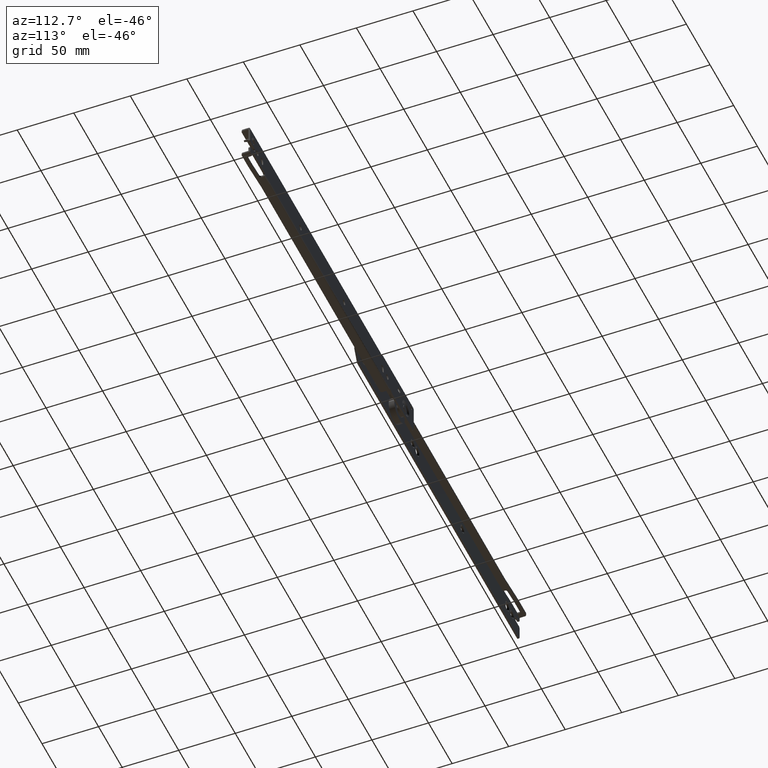
[diagram: clean part render]
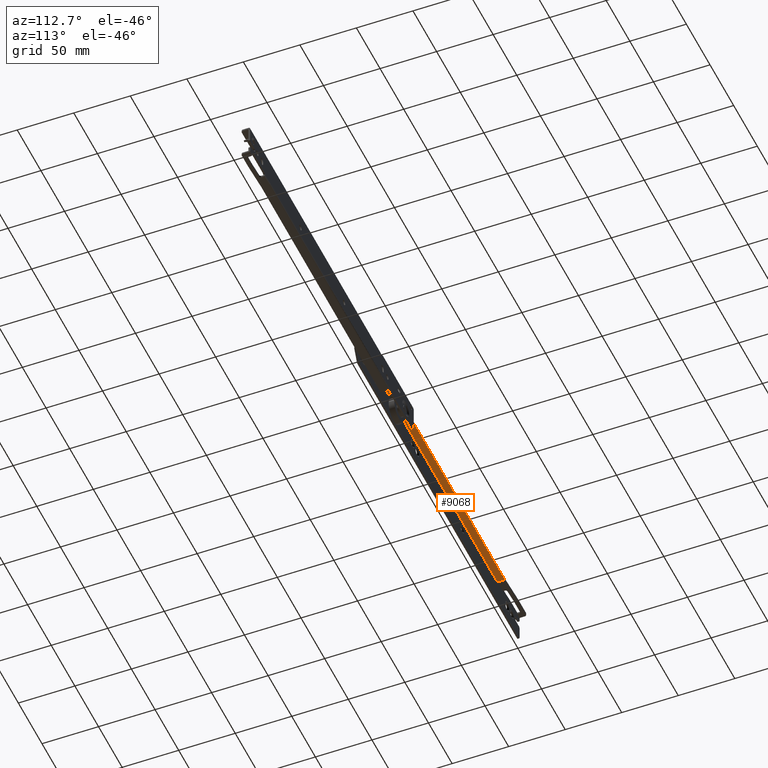
[diagram: same view with one face highlighted and labeled with its STEP entity id]
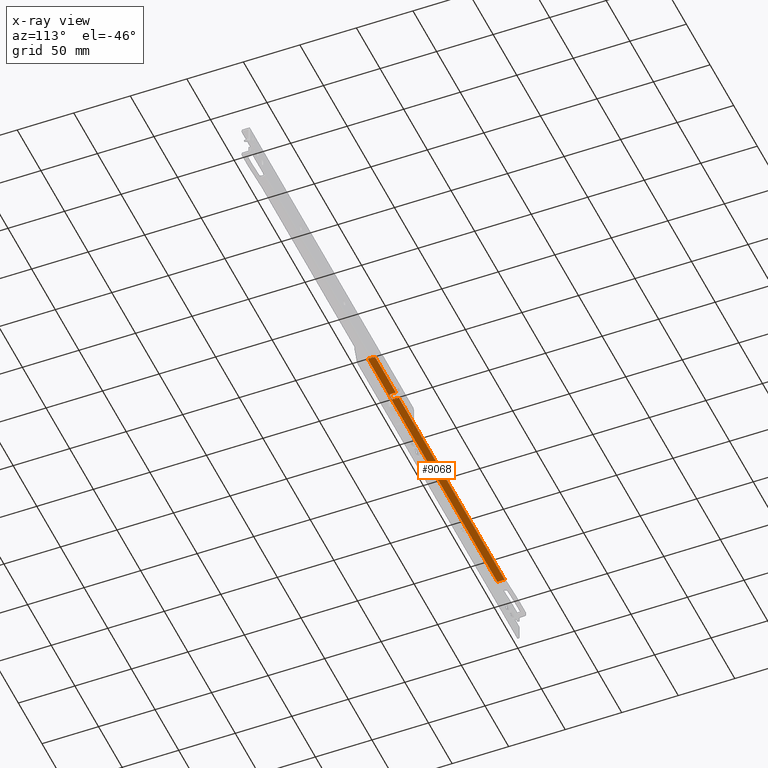
[diagram: x-ray of the same camera — body ghosted, the highlighted face saturated]
A machine part, auxiliary view. The second image highlights one B-rep face of the part: STEP entity #9068.
The next image is the same camera in x-ray: the body ghosted, the highlighted face saturated — about 0% of this face is hidden behind the body in this view.
In plain terms, the highlighted face is a freeform B-spline surface patch.
Its self-contained STEP definition (entity closure, byte-faithful):
#7277=CARTESIAN_POINT('',(321.0,6.0,22.500000000000000));
#7278=VERTEX_POINT('',#7277);
#7284=CARTESIAN_POINT('',(319.0,8.0,22.500000000000000));
#7285=VERTEX_POINT('',#7284);
#7286=CARTESIAN_POINT('',(319.0,8.0,22.500000000000000));
#7287=CARTESIAN_POINT('',(321.000000000000060,8.0,22.500000000000000));
#7288=CARTESIAN_POINT('',(321.0,6.0,22.500000000000000));
#7296=(BOUNDED_CURVE()B_SPLINE_CURVE(2,(#7286,#7287,#7288),.UNSPECIFIED.,.F.,.U.)CURVE()GEOMETRIC_REPRESENTATION_ITEM()QUASI_UNIFORM_CURVE()RATIONAL_B_SPLINE_CURVE((1.0,0.707106781186548,1.0))REPRESENTATION_ITEM(''));
#7297=EDGE_CURVE('',#7285,#7278,#7296,.T.);
#7434=CARTESIAN_POINT('',(277.020106000000000,2.0,22.500000000000000));
#7435=VERTEX_POINT('',#7434);
#7443=CARTESIAN_POINT('',(274.469830000000000,2.0,22.500000000000000));
#7444=VERTEX_POINT('',#7443);
#7445=CARTESIAN_POINT('',(277.020106000000000,2.0,22.500000000000000));
#7446=CARTESIAN_POINT('',(274.469830000000000,2.0,22.500000000000000));
#7447=QUASI_UNIFORM_CURVE('',1,(#7445,#7446),.UNSPECIFIED.,.F.,.U.);
#7448=EDGE_CURVE('',#7435,#7444,#7447,.T.);
#7456=CARTESIAN_POINT('',(273.094830000000000,2.000000000000030,22.500000000000000));
#7457=VERTEX_POINT('',#7456);
#7463=CARTESIAN_POINT('',(270.544554000000010,2.0,22.500000000000000));
#7464=VERTEX_POINT('',#7463);
#7465=CARTESIAN_POINT('',(273.094830000000000,2.000000000000030,22.500000000000000));
#7466=CARTESIAN_POINT('',(270.544554000000010,2.0,22.500000000000000));
#7467=QUASI_UNIFORM_CURVE('',1,(#7465,#7466),.UNSPECIFIED.,.F.,.U.);
#7468=EDGE_CURVE('',#7457,#7464,#7467,.T.);
#7499=CARTESIAN_POINT('',(270.544554000000010,8.0,22.500000000000000));
#7500=VERTEX_POINT('',#7499);
#7501=CARTESIAN_POINT('',(270.544554000000010,8.0,22.500000000000000));
#7502=CARTESIAN_POINT('',(270.544554000000010,2.0,22.500000000000000));
#7503=QUASI_UNIFORM_CURVE('',1,(#7501,#7502),.UNSPECIFIED.,.F.,.U.);
#7504=EDGE_CURVE('',#7500,#7464,#7503,.T.);
#7567=CARTESIAN_POINT('',(277.020106000000000,8.0,22.500000000000000));
#7568=VERTEX_POINT('',#7567);
#7574=CARTESIAN_POINT('',(277.020106000000000,8.0,22.500000000000000));
#7575=CARTESIAN_POINT('',(277.020106000000000,2.0,22.500000000000000));
#7576=QUASI_UNIFORM_CURVE('',1,(#7574,#7575),.UNSPECIFIED.,.F.,.U.);
#7577=EDGE_CURVE('',#7568,#7435,#7576,.T.);
#7851=CARTESIAN_POINT('',(321.0,1.500000000000000,22.500000000000000));
#7852=VERTEX_POINT('',#7851);
#8511=CARTESIAN_POINT('',(47.0,8.0,22.500000000000000));
#8512=VERTEX_POINT('',#8511);
#8518=CARTESIAN_POINT('',(47.0,1.500000000000000,22.500000000000000));
#8519=VERTEX_POINT('',#8518);
#8520=CARTESIAN_POINT('',(47.0,8.0,22.500000000000000));
#8521=CARTESIAN_POINT('',(47.0,1.500000000000000,22.500000000000000));
#8522=QUASI_UNIFORM_CURVE('',1,(#8520,#8521),.UNSPECIFIED.,.F.,.U.);
#8523=EDGE_CURVE('',#8512,#8519,#8522,.T.);
#8949=CARTESIAN_POINT('',(321.0,6.0,22.500000000000000));
#8950=CARTESIAN_POINT('',(321.0,1.500000000000000,22.500000000000000));
#8951=QUASI_UNIFORM_CURVE('',1,(#8949,#8950),.UNSPECIFIED.,.F.,.U.);
#8952=EDGE_CURVE('',#7278,#7852,#8951,.T.);
#8990=CARTESIAN_POINT('',(319.0,8.0,22.500000000000000));
#8991=CARTESIAN_POINT('',(277.020106000000000,8.0,22.500000000000000));
#8992=QUASI_UNIFORM_CURVE('',1,(#8990,#8991),.UNSPECIFIED.,.F.,.U.);
#8993=EDGE_CURVE('',#7285,#7568,#8992,.T.);
#8998=CARTESIAN_POINT('',(270.544554000000010,8.0,22.500000000000000));
#8999=CARTESIAN_POINT('',(47.0,8.0,22.500000000000000));
#9000=QUASI_UNIFORM_CURVE('',1,(#8998,#8999),.UNSPECIFIED.,.F.,.U.);
#9001=EDGE_CURVE('',#7500,#8512,#9000,.T.);
#9033=CARTESIAN_POINT('',(274.469830000000000,2.0,22.500000000000000));
#9034=CARTESIAN_POINT('',(273.094830000000000,2.000000000000030,22.500000000000000));
#9035=QUASI_UNIFORM_CURVE('',1,(#9033,#9034),.UNSPECIFIED.,.F.,.U.);
#9036=EDGE_CURVE('',#7444,#7457,#9035,.T.);
#9046=CARTESIAN_POINT('',(334.686299468934920,1.175325012598261,22.500000000000000));
#9047=CARTESIAN_POINT('',(33.313693181812468,1.175325012598261,22.500000000000000));
#9048=CARTESIAN_POINT('',(334.686299468934920,8.324675161745324,22.500000000000000));
#9049=CARTESIAN_POINT('',(33.313693181812468,8.324675161745324,22.500000000000000));
#9050=B_SPLINE_SURFACE_WITH_KNOTS('',1,1,((#9046,#9048),(#9047,#9049)),.UNSPECIFIED.,.F.,.F.,.U.,(2,2),(2,2),(0.0,301.372606287122380),(0.0,7.149350149147063),.UNSPECIFIED.);
#9051=ORIENTED_EDGE('',*,*,#8993,.F.);
#9052=ORIENTED_EDGE('',*,*,#7297,.T.);
#9053=ORIENTED_EDGE('',*,*,#8952,.T.);
#9054=CARTESIAN_POINT('',(321.0,1.500000000000000,22.500000000000000));
#9055=CARTESIAN_POINT('',(47.0,1.500000000000000,22.500000000000000));
#9056=QUASI_UNIFORM_CURVE('',1,(#9054,#9055),.UNSPECIFIED.,.F.,.U.);
#9057=EDGE_CURVE('',#7852,#8519,#9056,.T.);
#9058=ORIENTED_EDGE('',*,*,#9057,.T.);
#9059=ORIENTED_EDGE('',*,*,#8523,.F.);
#9060=ORIENTED_EDGE('',*,*,#9001,.F.);
#9061=ORIENTED_EDGE('',*,*,#7504,.T.);
#9062=ORIENTED_EDGE('',*,*,#7468,.F.);
#9063=ORIENTED_EDGE('',*,*,#9036,.F.);
#9064=ORIENTED_EDGE('',*,*,#7448,.F.);
#9065=ORIENTED_EDGE('',*,*,#7577,.F.);
#9066=EDGE_LOOP('',(#9051,#9052,#9053,#9058,#9059,#9060,#9061,#9062,#9063,#9064,#9065));
#9067=FACE_OUTER_BOUND('',#9066,.T.);
#9068=ADVANCED_FACE('',(#9067),#9050,.T.);